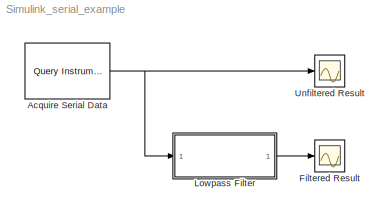
MODEL Simulink_serial_example
KIND model
BLOCK [Reference] Acquire Serial Data  REF=instrumentlib/Query Instrument
  Ports = [0, 1]
  SID = 1
  SourceBlock = instrumentlib/Query Instrument
  SourceProductBaseCode = IC
  SourceProductName = Instrument Control Toolbox
  SourceType = queryinstrument
  afterOutputAction = Repeat query for new data
  asciiFormatting = '%d'
  baudRate = 9600
  boardIndex = 0
  byteOrder = Little endian
  chassisIndex = 0
  enableFrames = off
  frameSize = 1
  gpibVendor = Advantech
  initAction = Send ASCII Commands
  initCommand = 'DATA:SOURCE CH1'
  initFunction = get
  inputBufferSize = 10000
  isWorkspaceObject = off
  logicalAddress = 0
  precision = 16-bit integer
  primaryAddress = 1
  protocol = Serial
  queryCommand = 'curve?'
  removeBytes = on
  responseFormat = Binary
  sampleTime = 1
  secondaryAddress = 0
  serialPort = COM1
  tcpRemoteHost = '127.0.0.1'
  tcpRemotePort = 4500
  timeout = 10
  udpRemoteHost = '127.0.0.1'
  udpRemotePort = 9090
  usbBoardIndex = 0
  usbManufID = 0
  usbModelCode = 0
  usbSerialNumber = 0
  valuesToRead = 1056
  visaSerialPort = 0
  visaTCPBoardIndex = 0
  visaTCPRemoteHost = '127.0.0.1'
  visaVendor = Agilent
BLOCK [Scope] Filtered Result
  Floating = off
  NumInputPorts = 1
  Ports = [1]
  SID = 2
  ScopeSpecificationString = C++SS(StrPVP('Location','[54, 416, 378, 655]'),StrPVP('Open','off'),MxPVP('AxesTitles',54,'struct(''axes1'',''%<SignalLabel>'')'),StrPVP('SaveName','ScopeData1'),StrPVP('DataFormat','StructureWithTime'),StrPVP('BlockParamSampleTime','0'),StrPVP('LimitDataPoints','on'),StrPVP('Decimation','1'),StrPVP('BlockParamSampleInput','off'))
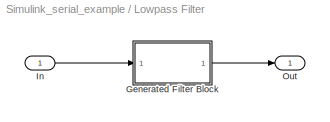
BLOCK [SubSystem] Lowpass Filter
  CopyFcn = fdesignblkfcn(gcbh, {'CopyFcn'});
  DialogController = fdesignblkfcn
  DialogControllerArgs = DataTag1
  InitFcn = fdesignblkfcn(gcbh, {'InitFcn'});
  Ports = [1, 1]
  RequestExecContextInheritance = off
  SID = 3
  UserData = DataTag0
  UserDataPersistent = on
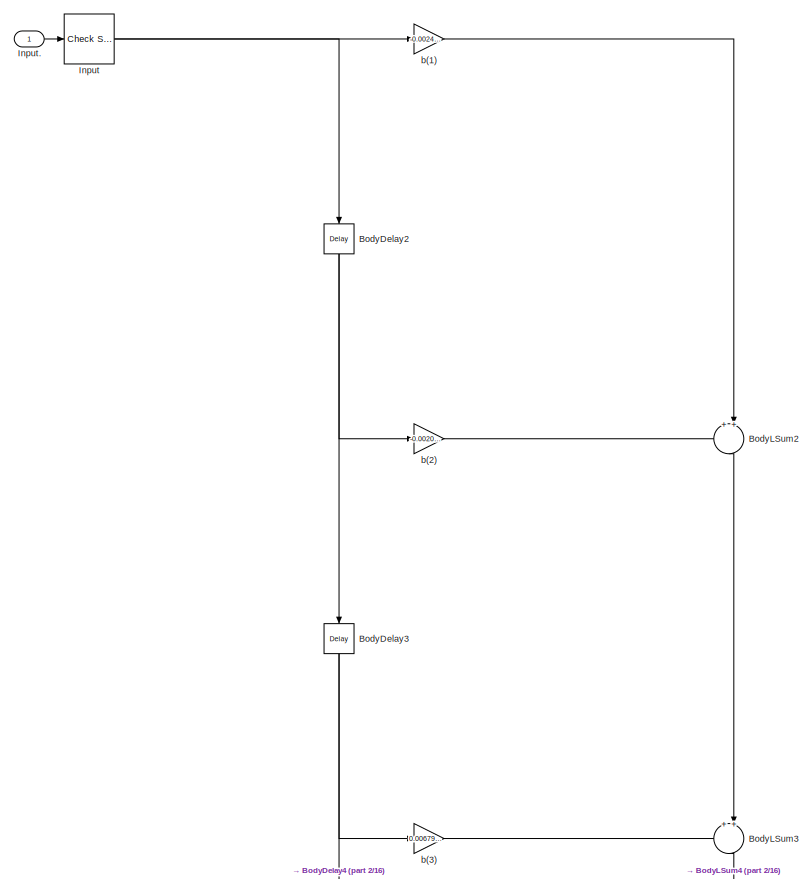
[diagram: Lowpass Filter/Generated Filter Block - part 1/16, full width, top band]
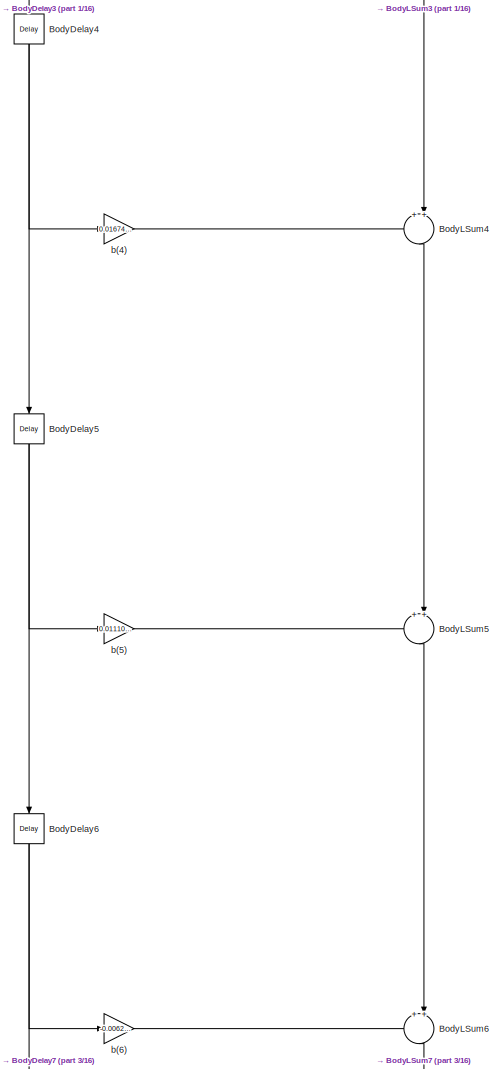
[diagram: Lowpass Filter/Generated Filter Block - part 2/16, top center region]
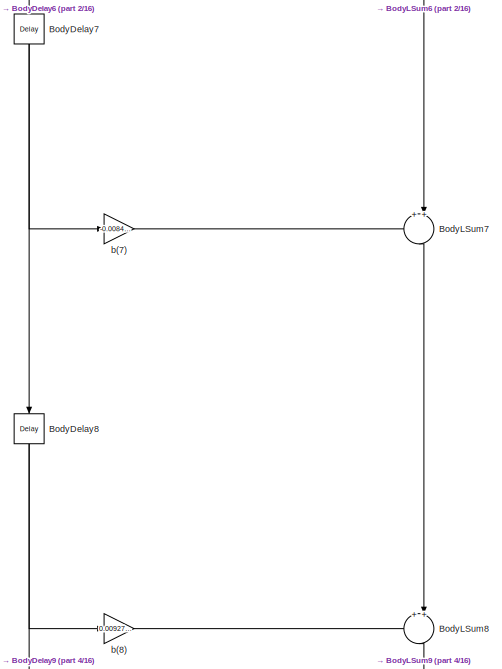
[diagram: Lowpass Filter/Generated Filter Block - part 3/16, top center region]
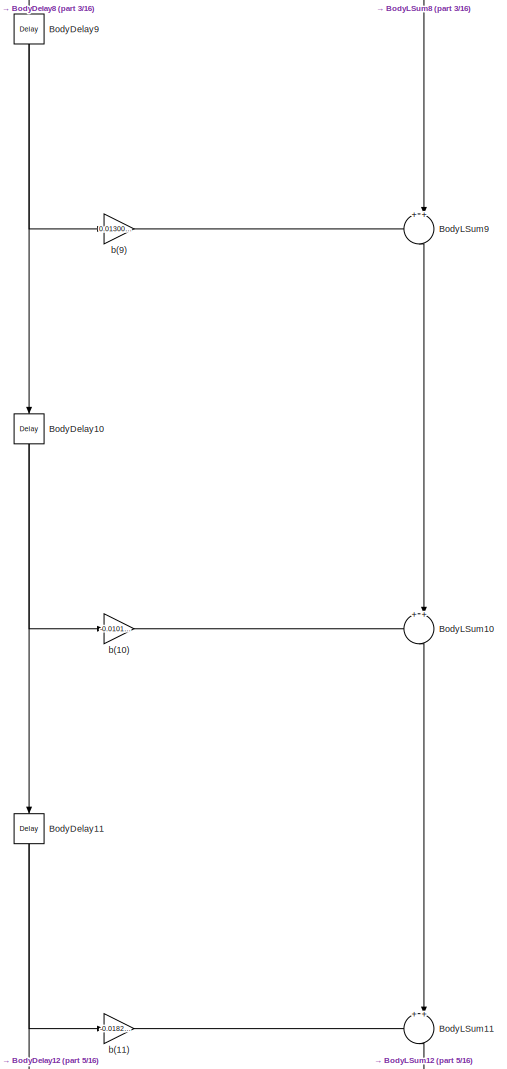
[diagram: Lowpass Filter/Generated Filter Block - part 4/16, top center region]
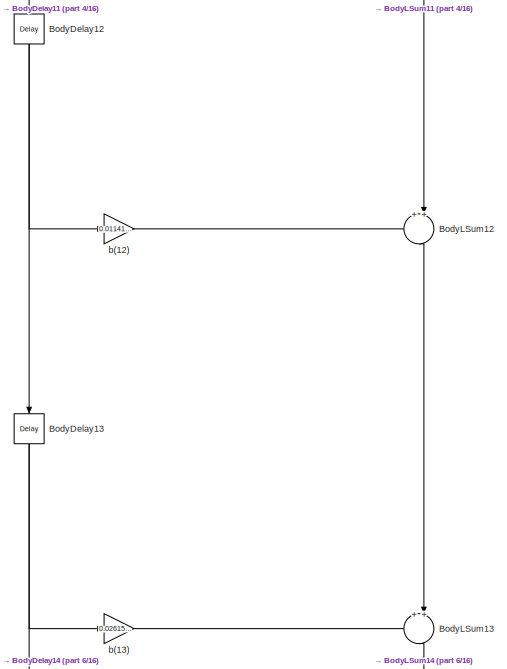
[diagram: Lowpass Filter/Generated Filter Block - part 5/16, top center region]
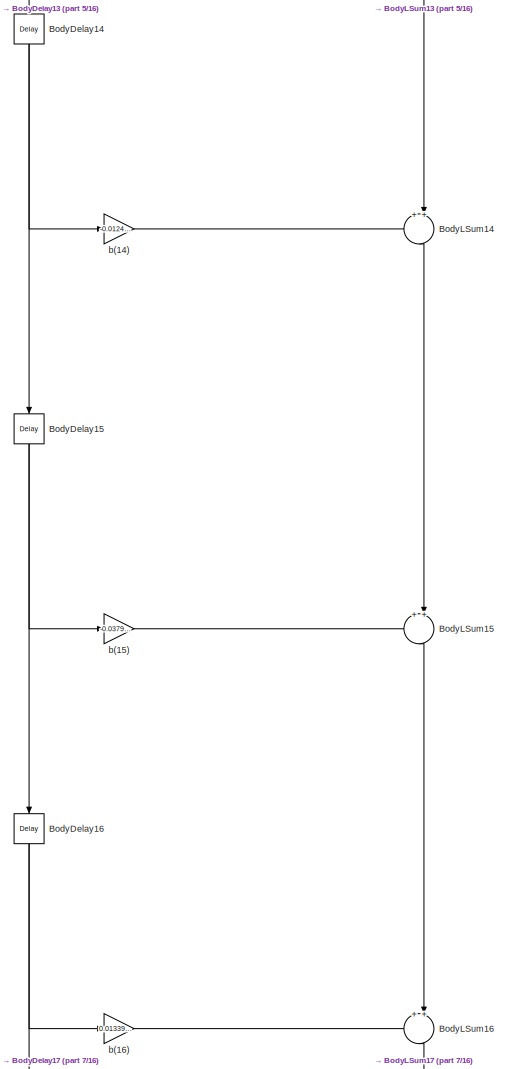
[diagram: Lowpass Filter/Generated Filter Block - part 6/16, top center region]
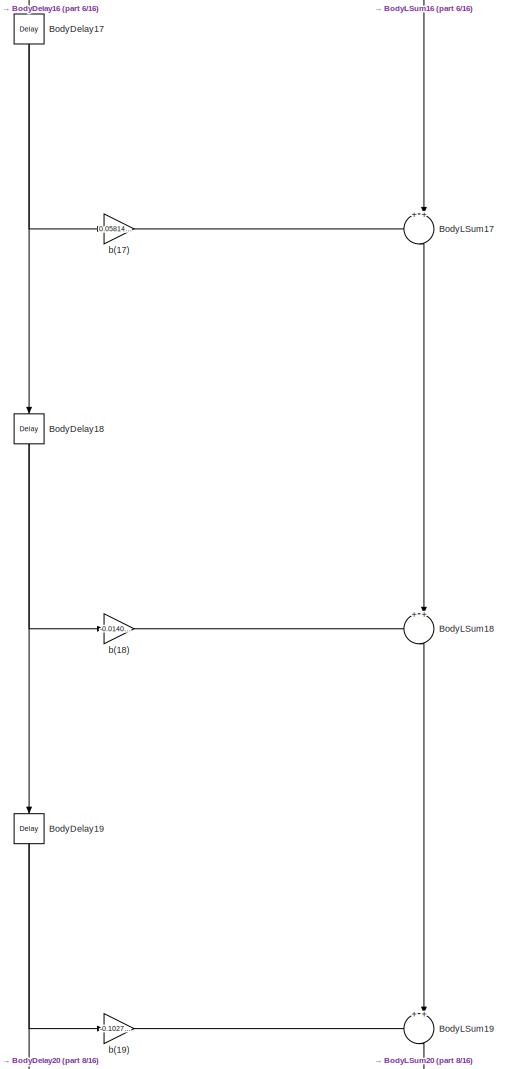
[diagram: Lowpass Filter/Generated Filter Block - part 7/16, central region]
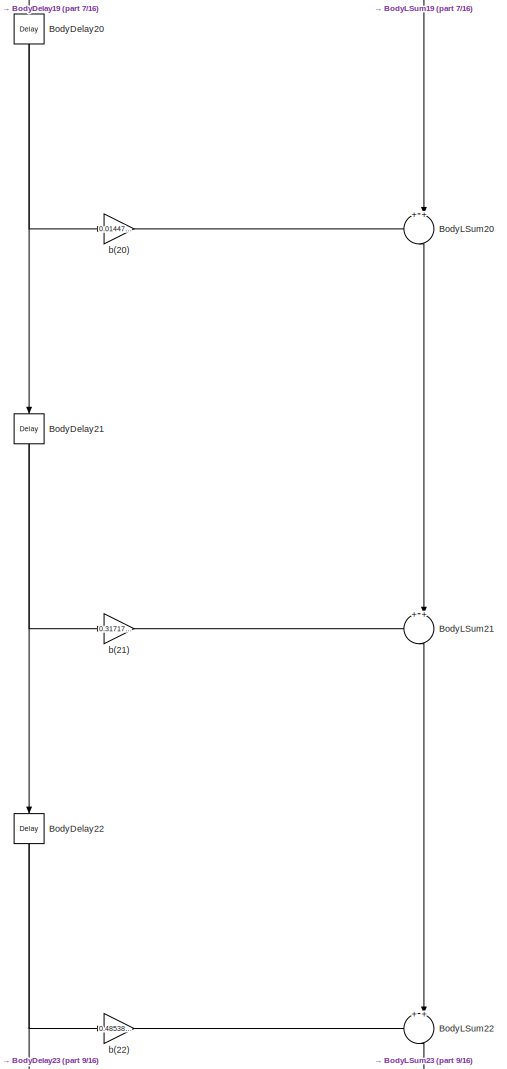
[diagram: Lowpass Filter/Generated Filter Block - part 8/16, central region]
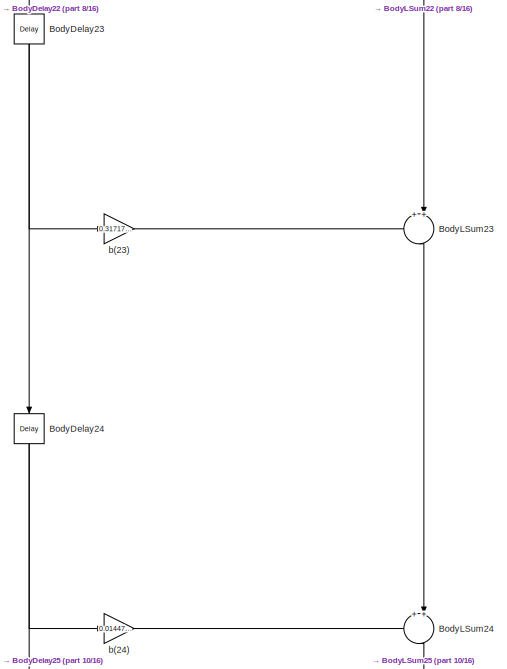
[diagram: Lowpass Filter/Generated Filter Block - part 9/16, central region]
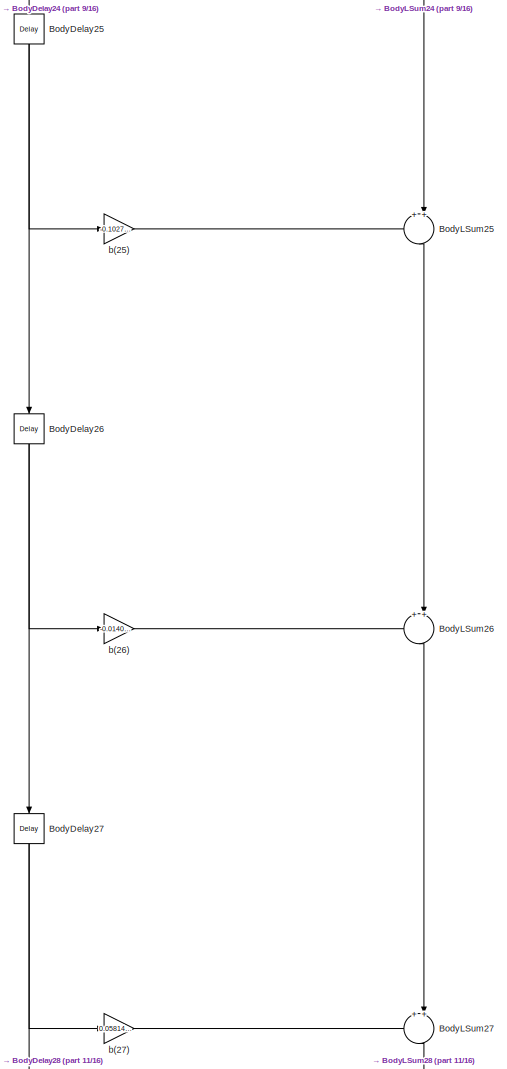
[diagram: Lowpass Filter/Generated Filter Block - part 10/16, central region]
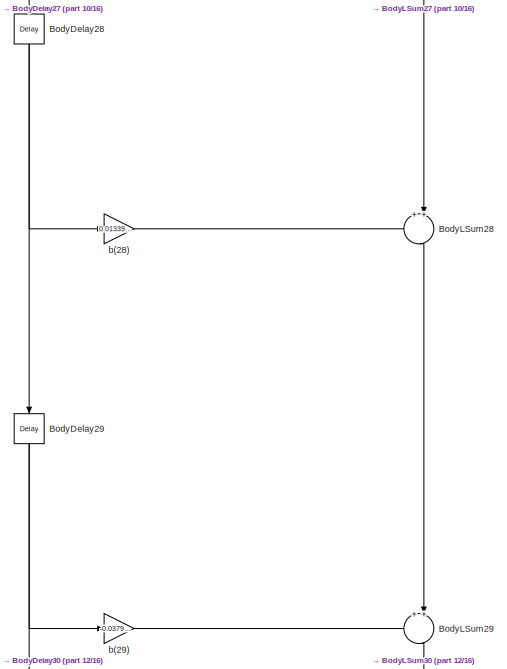
[diagram: Lowpass Filter/Generated Filter Block - part 11/16, central region]
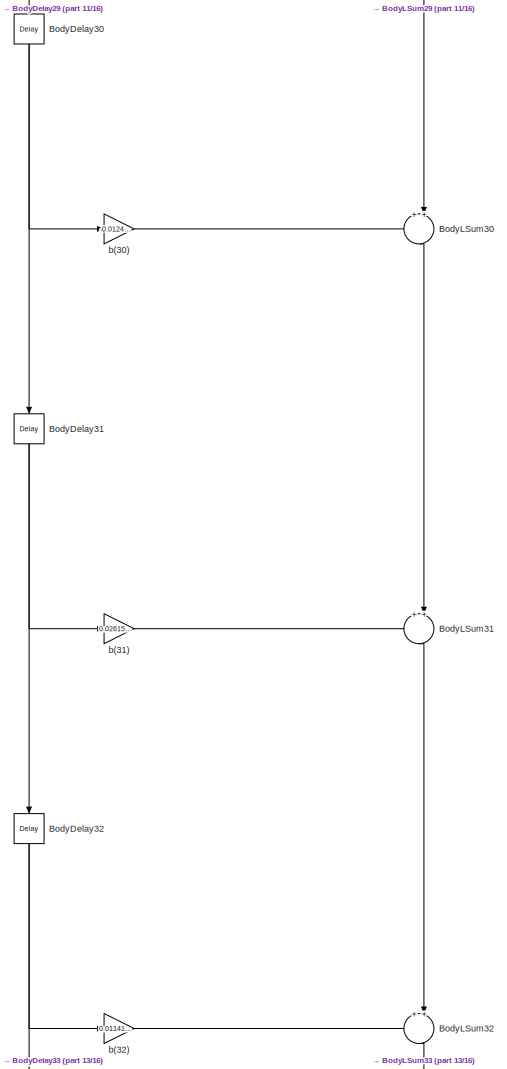
[diagram: Lowpass Filter/Generated Filter Block - part 12/16, bottom center region]
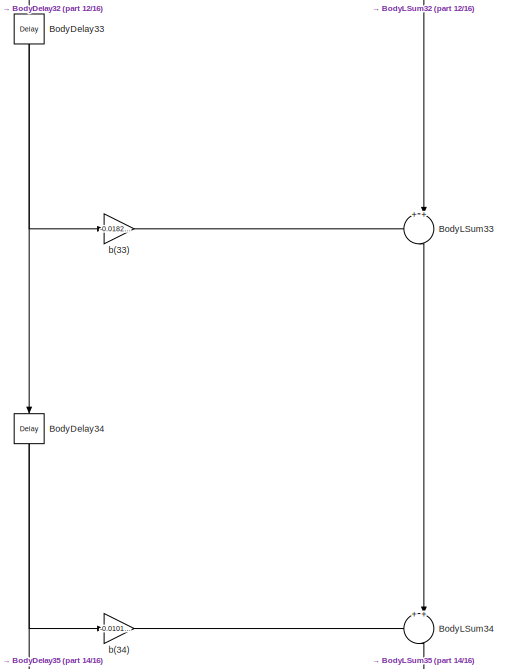
[diagram: Lowpass Filter/Generated Filter Block - part 13/16, bottom center region]
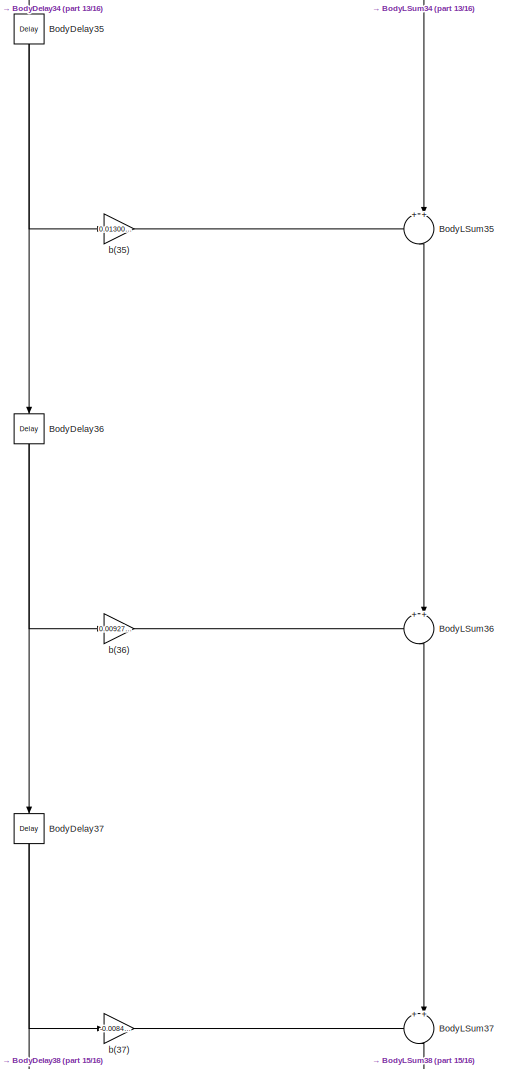
[diagram: Lowpass Filter/Generated Filter Block - part 14/16, bottom center region]
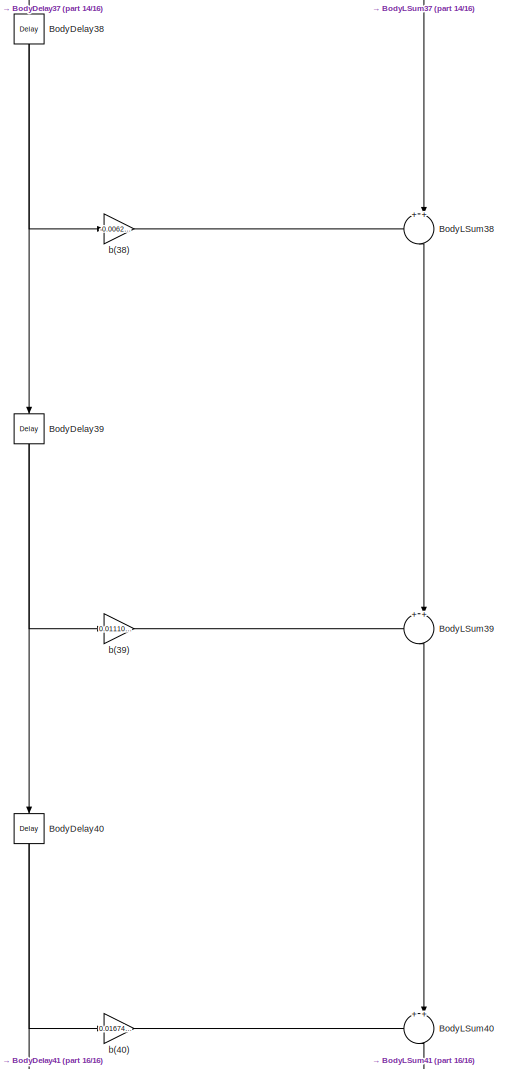
[diagram: Lowpass Filter/Generated Filter Block - part 15/16, bottom center region]
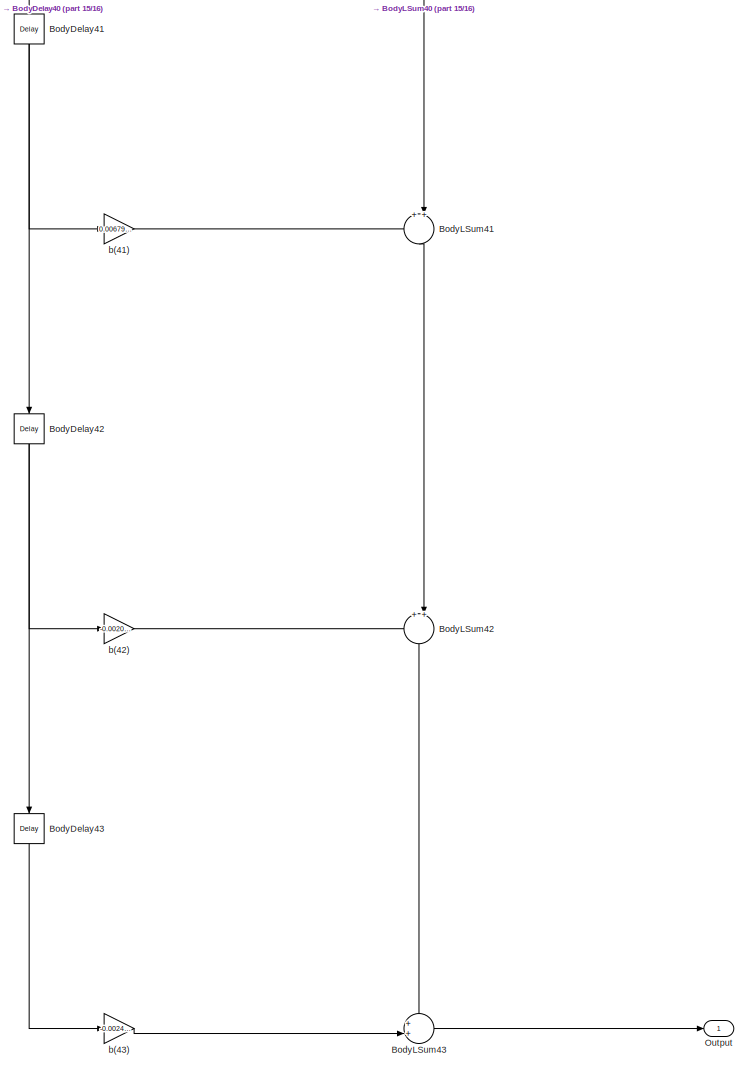
[diagram: Lowpass Filter/Generated Filter Block - part 16/16, bottom center region]
BLOCK [SubSystem] Lowpass Filter/Generated Filter Block
  ErrorFcn = dspFilterRealizedInBasicElemsAlgLoopErrFcnCallback
  Ports = [1, 1]
  RequestExecContextInheritance = off
  SID = 3:2
  Tag = FilterWizardSubSystem
BLOCK [Reference] Lowpass Filter/Generated Filter Block/BodyDelay10  REF=dspsigops/Delay
  Ports = [1, 1]
  SID = 3:4
  SourceBlock = dspsigops/Delay
  SourceProductBaseCode = DS
  SourceProductName = DSP System Toolbox
  SourceType = Delay
  delay = 1
  dif_ic_for_ch = off
  dif_ic_for_dly = off
  dly_unit = Samples
  ic = 0
  ic_detail = off
  reset_popup = None
BLOCK [Reference] Lowpass Filter/Generated Filter Block/BodyDelay11  REF=dspsigops/Delay
  Ports = [1, 1]
  SID = 3:5
  SourceBlock = dspsigops/Delay
  SourceProductBaseCode = DS
  SourceProductName = DSP System Toolbox
  SourceType = Delay
  delay = 1
  dif_ic_for_ch = off
  dif_ic_for_dly = off
  dly_unit = Samples
  ic = 0
  ic_detail = off
  reset_popup = None
BLOCK [Reference] Lowpass Filter/Generated Filter Block/BodyDelay12  REF=dspsigops/Delay
  Ports = [1, 1]
  SID = 3:6
  SourceBlock = dspsigops/Delay
  SourceProductBaseCode = DS
  SourceProductName = DSP System Toolbox
  SourceType = Delay
  delay = 1
  dif_ic_for_ch = off
  dif_ic_for_dly = off
  dly_unit = Samples
  ic = 0
  ic_detail = off
  reset_popup = None
BLOCK [Reference] Lowpass Filter/Generated Filter Block/BodyDelay13  REF=dspsigops/Delay
  Ports = [1, 1]
  SID = 3:7
  SourceBlock = dspsigops/Delay
  SourceProductBaseCode = DS
  SourceProductName = DSP System Toolbox
  SourceType = Delay
  delay = 1
  dif_ic_for_ch = off
  dif_ic_for_dly = off
  dly_unit = Samples
  ic = 0
  ic_detail = off
  reset_popup = None
BLOCK [Reference] Lowpass Filter/Generated Filter Block/BodyDelay14  REF=dspsigops/Delay
  Ports = [1, 1]
  SID = 3:8
  SourceBlock = dspsigops/Delay
  SourceProductBaseCode = DS
  SourceProductName = DSP System Toolbox
  SourceType = Delay
  delay = 1
  dif_ic_for_ch = off
  dif_ic_for_dly = off
  dly_unit = Samples
  ic = 0
  ic_detail = off
  reset_popup = None
BLOCK [Reference] Lowpass Filter/Generated Filter Block/BodyDelay15  REF=dspsigops/Delay
  Ports = [1, 1]
  SID = 3:9
  SourceBlock = dspsigops/Delay
  SourceProductBaseCode = DS
  SourceProductName = DSP System Toolbox
  SourceType = Delay
  delay = 1
  dif_ic_for_ch = off
  dif_ic_for_dly = off
  dly_unit = Samples
  ic = 0
  ic_detail = off
  reset_popup = None
BLOCK [Reference] Lowpass Filter/Generated Filter Block/BodyDelay16  REF=dspsigops/Delay
  Ports = [1, 1]
  SID = 3:10
  SourceBlock = dspsigops/Delay
  SourceProductBaseCode = DS
  SourceProductName = DSP System Toolbox
  SourceType = Delay
  delay = 1
  dif_ic_for_ch = off
  dif_ic_for_dly = off
  dly_unit = Samples
  ic = 0
  ic_detail = off
  reset_popup = None
BLOCK [Reference] Lowpass Filter/Generated Filter Block/BodyDelay17  REF=dspsigops/Delay
  Ports = [1, 1]
  SID = 3:11
  SourceBlock = dspsigops/Delay
  SourceProductBaseCode = DS
  SourceProductName = DSP System Toolbox
  SourceType = Delay
  delay = 1
  dif_ic_for_ch = off
  dif_ic_for_dly = off
  dly_unit = Samples
  ic = 0
  ic_detail = off
  reset_popup = None
BLOCK [Reference] Lowpass Filter/Generated Filter Block/BodyDelay18  REF=dspsigops/Delay
  Ports = [1, 1]
  SID = 3:12
  SourceBlock = dspsigops/Delay
  SourceProductBaseCode = DS
  SourceProductName = DSP System Toolbox
  SourceType = Delay
  delay = 1
  dif_ic_for_ch = off
  dif_ic_for_dly = off
  dly_unit = Samples
  ic = 0
  ic_detail = off
  reset_popup = None
BLOCK [Reference] Lowpass Filter/Generated Filter Block/BodyDelay19  REF=dspsigops/Delay
  Ports = [1, 1]
  SID = 3:13
  SourceBlock = dspsigops/Delay
  SourceProductBaseCode = DS
  SourceProductName = DSP System Toolbox
  SourceType = Delay
  delay = 1
  dif_ic_for_ch = off
  dif_ic_for_dly = off
  dly_unit = Samples
  ic = 0
  ic_detail = off
  reset_popup = None
BLOCK [Reference] Lowpass Filter/Generated Filter Block/BodyDelay2  REF=dspsigops/Delay
  Ports = [1, 1]
  SID = 3:14
  SourceBlock = dspsigops/Delay
  SourceProductBaseCode = DS
  SourceProductName = DSP System Toolbox
  SourceType = Delay
  delay = 1
  dif_ic_for_ch = off
  dif_ic_for_dly = off
  dly_unit = Samples
  ic = 0
  ic_detail = off
  reset_popup = None
BLOCK [Reference] Lowpass Filter/Generated Filter Block/BodyDelay20  REF=dspsigops/Delay
  Ports = [1, 1]
  SID = 3:15
  SourceBlock = dspsigops/Delay
  SourceProductBaseCode = DS
  SourceProductName = DSP System Toolbox
  SourceType = Delay
  delay = 1
  dif_ic_for_ch = off
  dif_ic_for_dly = off
  dly_unit = Samples
  ic = 0
  ic_detail = off
  reset_popup = None
BLOCK [Reference] Lowpass Filter/Generated Filter Block/BodyDelay21  REF=dspsigops/Delay
  Ports = [1, 1]
  SID = 3:16
  SourceBlock = dspsigops/Delay
  SourceProductBaseCode = DS
  SourceProductName = DSP System Toolbox
  SourceType = Delay
  delay = 1
  dif_ic_for_ch = off
  dif_ic_for_dly = off
  dly_unit = Samples
  ic = 0
  ic_detail = off
  reset_popup = None
BLOCK [Reference] Lowpass Filter/Generated Filter Block/BodyDelay22  REF=dspsigops/Delay
  Ports = [1, 1]
  SID = 3:17
  SourceBlock = dspsigops/Delay
  SourceProductBaseCode = DS
  SourceProductName = DSP System Toolbox
  SourceType = Delay
  delay = 1
  dif_ic_for_ch = off
  dif_ic_for_dly = off
  dly_unit = Samples
  ic = 0
  ic_detail = off
  reset_popup = None
BLOCK [Reference] Lowpass Filter/Generated Filter Block/BodyDelay23  REF=dspsigops/Delay
  Ports = [1, 1]
  SID = 3:18
  SourceBlock = dspsigops/Delay
  SourceProductBaseCode = DS
  SourceProductName = DSP System Toolbox
  SourceType = Delay
  delay = 1
  dif_ic_for_ch = off
  dif_ic_for_dly = off
  dly_unit = Samples
  ic = 0
  ic_detail = off
  reset_popup = None
BLOCK [Reference] Lowpass Filter/Generated Filter Block/BodyDelay24  REF=dspsigops/Delay
  Ports = [1, 1]
  SID = 3:19
  SourceBlock = dspsigops/Delay
  SourceProductBaseCode = DS
  SourceProductName = DSP System Toolbox
  SourceType = Delay
  delay = 1
  dif_ic_for_ch = off
  dif_ic_for_dly = off
  dly_unit = Samples
  ic = 0
  ic_detail = off
  reset_popup = None
BLOCK [Reference] Lowpass Filter/Generated Filter Block/BodyDelay25  REF=dspsigops/Delay
  Ports = [1, 1]
  SID = 3:20
  SourceBlock = dspsigops/Delay
  SourceProductBaseCode = DS
  SourceProductName = DSP System Toolbox
  SourceType = Delay
  delay = 1
  dif_ic_for_ch = off
  dif_ic_for_dly = off
  dly_unit = Samples
  ic = 0
  ic_detail = off
  reset_popup = None
BLOCK [Reference] Lowpass Filter/Generated Filter Block/BodyDelay26  REF=dspsigops/Delay
  Ports = [1, 1]
  SID = 3:21
  SourceBlock = dspsigops/Delay
  SourceProductBaseCode = DS
  SourceProductName = DSP System Toolbox
  SourceType = Delay
  delay = 1
  dif_ic_for_ch = off
  dif_ic_for_dly = off
  dly_unit = Samples
  ic = 0
  ic_detail = off
  reset_popup = None
BLOCK [Reference] Lowpass Filter/Generated Filter Block/BodyDelay27  REF=dspsigops/Delay
  Ports = [1, 1]
  SID = 3:22
  SourceBlock = dspsigops/Delay
  SourceProductBaseCode = DS
  SourceProductName = DSP System Toolbox
  SourceType = Delay
  delay = 1
  dif_ic_for_ch = off
  dif_ic_for_dly = off
  dly_unit = Samples
  ic = 0
  ic_detail = off
  reset_popup = None
BLOCK [Reference] Lowpass Filter/Generated Filter Block/BodyDelay28  REF=dspsigops/Delay
  Ports = [1, 1]
  SID = 3:23
  SourceBlock = dspsigops/Delay
  SourceProductBaseCode = DS
  SourceProductName = DSP System Toolbox
  SourceType = Delay
  delay = 1
  dif_ic_for_ch = off
  dif_ic_for_dly = off
  dly_unit = Samples
  ic = 0
  ic_detail = off
  reset_popup = None
BLOCK [Reference] Lowpass Filter/Generated Filter Block/BodyDelay29  REF=dspsigops/Delay
  Ports = [1, 1]
  SID = 3:24
  SourceBlock = dspsigops/Delay
  SourceProductBaseCode = DS
  SourceProductName = DSP System Toolbox
  SourceType = Delay
  delay = 1
  dif_ic_for_ch = off
  dif_ic_for_dly = off
  dly_unit = Samples
  ic = 0
  ic_detail = off
  reset_popup = None
BLOCK [Reference] Lowpass Filter/Generated Filter Block/BodyDelay3  REF=dspsigops/Delay
  Ports = [1, 1]
  SID = 3:25
  SourceBlock = dspsigops/Delay
  SourceProductBaseCode = DS
  SourceProductName = DSP System Toolbox
  SourceType = Delay
  delay = 1
  dif_ic_for_ch = off
  dif_ic_for_dly = off
  dly_unit = Samples
  ic = 0
  ic_detail = off
  reset_popup = None
BLOCK [Reference] Lowpass Filter/Generated Filter Block/BodyDelay30  REF=dspsigops/Delay
  Ports = [1, 1]
  SID = 3:26
  SourceBlock = dspsigops/Delay
  SourceProductBaseCode = DS
  SourceProductName = DSP System Toolbox
  SourceType = Delay
  delay = 1
  dif_ic_for_ch = off
  dif_ic_for_dly = off
  dly_unit = Samples
  ic = 0
  ic_detail = off
  reset_popup = None
BLOCK [Reference] Lowpass Filter/Generated Filter Block/BodyDelay31  REF=dspsigops/Delay
  Ports = [1, 1]
  SID = 3:27
  SourceBlock = dspsigops/Delay
  SourceProductBaseCode = DS
  SourceProductName = DSP System Toolbox
  SourceType = Delay
  delay = 1
  dif_ic_for_ch = off
  dif_ic_for_dly = off
  dly_unit = Samples
  ic = 0
  ic_detail = off
  reset_popup = None
BLOCK [Reference] Lowpass Filter/Generated Filter Block/BodyDelay32  REF=dspsigops/Delay
  Ports = [1, 1]
  SID = 3:28
  SourceBlock = dspsigops/Delay
  SourceProductBaseCode = DS
  SourceProductName = DSP System Toolbox
  SourceType = Delay
  delay = 1
  dif_ic_for_ch = off
  dif_ic_for_dly = off
  dly_unit = Samples
  ic = 0
  ic_detail = off
  reset_popup = None
BLOCK [Reference] Lowpass Filter/Generated Filter Block/BodyDelay33  REF=dspsigops/Delay
  Ports = [1, 1]
  SID = 3:29
  SourceBlock = dspsigops/Delay
  SourceProductBaseCode = DS
  SourceProductName = DSP System Toolbox
  SourceType = Delay
  delay = 1
  dif_ic_for_ch = off
  dif_ic_for_dly = off
  dly_unit = Samples
  ic = 0
  ic_detail = off
  reset_popup = None
BLOCK [Reference] Lowpass Filter/Generated Filter Block/BodyDelay34  REF=dspsigops/Delay
  Ports = [1, 1]
  SID = 3:30
  SourceBlock = dspsigops/Delay
  SourceProductBaseCode = DS
  SourceProductName = DSP System Toolbox
  SourceType = Delay
  delay = 1
  dif_ic_for_ch = off
  dif_ic_for_dly = off
  dly_unit = Samples
  ic = 0
  ic_detail = off
  reset_popup = None
BLOCK [Reference] Lowpass Filter/Generated Filter Block/BodyDelay35  REF=dspsigops/Delay
  Ports = [1, 1]
  SID = 3:31
  SourceBlock = dspsigops/Delay
  SourceProductBaseCode = DS
  SourceProductName = DSP System Toolbox
  SourceType = Delay
  delay = 1
  dif_ic_for_ch = off
  dif_ic_for_dly = off
  dly_unit = Samples
  ic = 0
  ic_detail = off
  reset_popup = None
BLOCK [Reference] Lowpass Filter/Generated Filter Block/BodyDelay36  REF=dspsigops/Delay
  Ports = [1, 1]
  SID = 3:32
  SourceBlock = dspsigops/Delay
  SourceProductBaseCode = DS
  SourceProductName = DSP System Toolbox
  SourceType = Delay
  delay = 1
  dif_ic_for_ch = off
  dif_ic_for_dly = off
  dly_unit = Samples
  ic = 0
  ic_detail = off
  reset_popup = None
BLOCK [Reference] Lowpass Filter/Generated Filter Block/BodyDelay37  REF=dspsigops/Delay
  Ports = [1, 1]
  SID = 3:33
  SourceBlock = dspsigops/Delay
  SourceProductBaseCode = DS
  SourceProductName = DSP System Toolbox
  SourceType = Delay
  delay = 1
  dif_ic_for_ch = off
  dif_ic_for_dly = off
  dly_unit = Samples
  ic = 0
  ic_detail = off
  reset_popup = None
BLOCK [Reference] Lowpass Filter/Generated Filter Block/BodyDelay38  REF=dspsigops/Delay
  Ports = [1, 1]
  SID = 3:34
  SourceBlock = dspsigops/Delay
  SourceProductBaseCode = DS
  SourceProductName = DSP System Toolbox
  SourceType = Delay
  delay = 1
  dif_ic_for_ch = off
  dif_ic_for_dly = off
  dly_unit = Samples
  ic = 0
  ic_detail = off
  reset_popup = None
BLOCK [Reference] Lowpass Filter/Generated Filter Block/BodyDelay39  REF=dspsigops/Delay
  Ports = [1, 1]
  SID = 3:35
  SourceBlock = dspsigops/Delay
  SourceProductBaseCode = DS
  SourceProductName = DSP System Toolbox
  SourceType = Delay
  delay = 1
  dif_ic_for_ch = off
  dif_ic_for_dly = off
  dly_unit = Samples
  ic = 0
  ic_detail = off
  reset_popup = None
BLOCK [Reference] Lowpass Filter/Generated Filter Block/BodyDelay4  REF=dspsigops/Delay
  Ports = [1, 1]
  SID = 3:36
  SourceBlock = dspsigops/Delay
  SourceProductBaseCode = DS
  SourceProductName = DSP System Toolbox
  SourceType = Delay
  delay = 1
  dif_ic_for_ch = off
  dif_ic_for_dly = off
  dly_unit = Samples
  ic = 0
  ic_detail = off
  reset_popup = None
BLOCK [Reference] Lowpass Filter/Generated Filter Block/BodyDelay40  REF=dspsigops/Delay
  Ports = [1, 1]
  SID = 3:37
  SourceBlock = dspsigops/Delay
  SourceProductBaseCode = DS
  SourceProductName = DSP System Toolbox
  SourceType = Delay
  delay = 1
  dif_ic_for_ch = off
  dif_ic_for_dly = off
  dly_unit = Samples
  ic = 0
  ic_detail = off
  reset_popup = None
BLOCK [Reference] Lowpass Filter/Generated Filter Block/BodyDelay41  REF=dspsigops/Delay
  Ports = [1, 1]
  SID = 3:38
  SourceBlock = dspsigops/Delay
  SourceProductBaseCode = DS
  SourceProductName = DSP System Toolbox
  SourceType = Delay
  delay = 1
  dif_ic_for_ch = off
  dif_ic_for_dly = off
  dly_unit = Samples
  ic = 0
  ic_detail = off
  reset_popup = None
BLOCK [Reference] Lowpass Filter/Generated Filter Block/BodyDelay42  REF=dspsigops/Delay
  Ports = [1, 1]
  SID = 3:39
  SourceBlock = dspsigops/Delay
  SourceProductBaseCode = DS
  SourceProductName = DSP System Toolbox
  SourceType = Delay
  delay = 1
  dif_ic_for_ch = off
  dif_ic_for_dly = off
  dly_unit = Samples
  ic = 0
  ic_detail = off
  reset_popup = None
BLOCK [Reference] Lowpass Filter/Generated Filter Block/BodyDelay43  REF=dspsigops/Delay
  Ports = [1, 1]
  SID = 3:40
  SourceBlock = dspsigops/Delay
  SourceProductBaseCode = DS
  SourceProductName = DSP System Toolbox
  SourceType = Delay
  delay = 1
  dif_ic_for_ch = off
  dif_ic_for_dly = off
  dly_unit = Samples
  ic = 0
  ic_detail = off
  reset_popup = None
BLOCK [Reference] Lowpass Filter/Generated Filter Block/BodyDelay5  REF=dspsigops/Delay
  Ports = [1, 1]
  SID = 3:41
  SourceBlock = dspsigops/Delay
  SourceProductBaseCode = DS
  SourceProductName = DSP System Toolbox
  SourceType = Delay
  delay = 1
  dif_ic_for_ch = off
  dif_ic_for_dly = off
  dly_unit = Samples
  ic = 0
  ic_detail = off
  reset_popup = None
BLOCK [Reference] Lowpass Filter/Generated Filter Block/BodyDelay6  REF=dspsigops/Delay
  Ports = [1, 1]
  SID = 3:42
  SourceBlock = dspsigops/Delay
  SourceProductBaseCode = DS
  SourceProductName = DSP System Toolbox
  SourceType = Delay
  delay = 1
  dif_ic_for_ch = off
  dif_ic_for_dly = off
  dly_unit = Samples
  ic = 0
  ic_detail = off
  reset_popup = None
BLOCK [Reference] Lowpass Filter/Generated Filter Block/BodyDelay7  REF=dspsigops/Delay
  Ports = [1, 1]
  SID = 3:43
  SourceBlock = dspsigops/Delay
  SourceProductBaseCode = DS
  SourceProductName = DSP System Toolbox
  SourceType = Delay
  delay = 1
  dif_ic_for_ch = off
  dif_ic_for_dly = off
  dly_unit = Samples
  ic = 0
  ic_detail = off
  reset_popup = None
BLOCK [Reference] Lowpass Filter/Generated Filter Block/BodyDelay8  REF=dspsigops/Delay
  Ports = [1, 1]
  SID = 3:44
  SourceBlock = dspsigops/Delay
  SourceProductBaseCode = DS
  SourceProductName = DSP System Toolbox
  SourceType = Delay
  delay = 1
  dif_ic_for_ch = off
  dif_ic_for_dly = off
  dly_unit = Samples
  ic = 0
  ic_detail = off
  reset_popup = None
BLOCK [Reference] Lowpass Filter/Generated Filter Block/BodyDelay9  REF=dspsigops/Delay
  Ports = [1, 1]
  SID = 3:45
  SourceBlock = dspsigops/Delay
  SourceProductBaseCode = DS
  SourceProductName = DSP System Toolbox
  SourceType = Delay
  delay = 1
  dif_ic_for_ch = off
  dif_ic_for_dly = off
  dly_unit = Samples
  ic = 0
  ic_detail = off
  reset_popup = None
BLOCK [Sum] Lowpass Filter/Generated Filter Block/BodyLSum10
  IconShape = round
  Inputs = ++|
  OutDataTypeStr = Inherit: Inherit via internal rule
  Ports = [2, 1]
  RndMeth = Nearest
  SID = 3:46
BLOCK [Sum] Lowpass Filter/Generated Filter Block/BodyLSum11
  IconShape = round
  Inputs = ++|
  OutDataTypeStr = Inherit: Inherit via internal rule
  Ports = [2, 1]
  RndMeth = Nearest
  SID = 3:47
BLOCK [Sum] Lowpass Filter/Generated Filter Block/BodyLSum12
  IconShape = round
  Inputs = ++|
  OutDataTypeStr = Inherit: Inherit via internal rule
  Ports = [2, 1]
  RndMeth = Nearest
  SID = 3:48
BLOCK [Sum] Lowpass Filter/Generated Filter Block/BodyLSum13
  IconShape = round
  Inputs = ++|
  OutDataTypeStr = Inherit: Inherit via internal rule
  Ports = [2, 1]
  RndMeth = Nearest
  SID = 3:49
BLOCK [Sum] Lowpass Filter/Generated Filter Block/BodyLSum14
  IconShape = round
  Inputs = ++|
  OutDataTypeStr = Inherit: Inherit via internal rule
  Ports = [2, 1]
  RndMeth = Nearest
  SID = 3:50
BLOCK [Sum] Lowpass Filter/Generated Filter Block/BodyLSum15
  IconShape = round
  Inputs = ++|
  OutDataTypeStr = Inherit: Inherit via internal rule
  Ports = [2, 1]
  RndMeth = Nearest
  SID = 3:51
BLOCK [Sum] Lowpass Filter/Generated Filter Block/BodyLSum16
  IconShape = round
  Inputs = ++|
  OutDataTypeStr = Inherit: Inherit via internal rule
  Ports = [2, 1]
  RndMeth = Nearest
  SID = 3:52
BLOCK [Sum] Lowpass Filter/Generated Filter Block/BodyLSum17
  IconShape = round
  Inputs = ++|
  OutDataTypeStr = Inherit: Inherit via internal rule
  Ports = [2, 1]
  RndMeth = Nearest
  SID = 3:53
BLOCK [Sum] Lowpass Filter/Generated Filter Block/BodyLSum18
  IconShape = round
  Inputs = ++|
  OutDataTypeStr = Inherit: Inherit via internal rule
  Ports = [2, 1]
  RndMeth = Nearest
  SID = 3:54
BLOCK [Sum] Lowpass Filter/Generated Filter Block/BodyLSum19
  IconShape = round
  Inputs = ++|
  OutDataTypeStr = Inherit: Inherit via internal rule
  Ports = [2, 1]
  RndMeth = Nearest
  SID = 3:55
BLOCK [Sum] Lowpass Filter/Generated Filter Block/BodyLSum2
  IconShape = round
  Inputs = ++|
  OutDataTypeStr = Inherit: Inherit via internal rule
  Ports = [2, 1]
  RndMeth = Nearest
  SID = 3:56
BLOCK [Sum] Lowpass Filter/Generated Filter Block/BodyLSum20
  IconShape = round
  Inputs = ++|
  OutDataTypeStr = Inherit: Inherit via internal rule
  Ports = [2, 1]
  RndMeth = Nearest
  SID = 3:57
BLOCK [Sum] Lowpass Filter/Generated Filter Block/BodyLSum21
  IconShape = round
  Inputs = ++|
  OutDataTypeStr = Inherit: Inherit via internal rule
  Ports = [2, 1]
  RndMeth = Nearest
  SID = 3:58
BLOCK [Sum] Lowpass Filter/Generated Filter Block/BodyLSum22
  IconShape = round
  Inputs = ++|
  OutDataTypeStr = Inherit: Inherit via internal rule
  Ports = [2, 1]
  RndMeth = Nearest
  SID = 3:59
BLOCK [Sum] Lowpass Filter/Generated Filter Block/BodyLSum23
  IconShape = round
  Inputs = ++|
  OutDataTypeStr = Inherit: Inherit via internal rule
  Ports = [2, 1]
  RndMeth = Nearest
  SID = 3:60
BLOCK [Sum] Lowpass Filter/Generated Filter Block/BodyLSum24
  IconShape = round
  Inputs = ++|
  OutDataTypeStr = Inherit: Inherit via internal rule
  Ports = [2, 1]
  RndMeth = Nearest
  SID = 3:61
BLOCK [Sum] Lowpass Filter/Generated Filter Block/BodyLSum25
  IconShape = round
  Inputs = ++|
  OutDataTypeStr = Inherit: Inherit via internal rule
  Ports = [2, 1]
  RndMeth = Nearest
  SID = 3:62
BLOCK [Sum] Lowpass Filter/Generated Filter Block/BodyLSum26
  IconShape = round
  Inputs = ++|
  OutDataTypeStr = Inherit: Inherit via internal rule
  Ports = [2, 1]
  RndMeth = Nearest
  SID = 3:63
BLOCK [Sum] Lowpass Filter/Generated Filter Block/BodyLSum27
  IconShape = round
  Inputs = ++|
  OutDataTypeStr = Inherit: Inherit via internal rule
  Ports = [2, 1]
  RndMeth = Nearest
  SID = 3:64
BLOCK [Sum] Lowpass Filter/Generated Filter Block/BodyLSum28
  IconShape = round
  Inputs = ++|
  OutDataTypeStr = Inherit: Inherit via internal rule
  Ports = [2, 1]
  RndMeth = Nearest
  SID = 3:65
BLOCK [Sum] Lowpass Filter/Generated Filter Block/BodyLSum29
  IconShape = round
  Inputs = ++|
  OutDataTypeStr = Inherit: Inherit via internal rule
  Ports = [2, 1]
  RndMeth = Nearest
  SID = 3:66
BLOCK [Sum] Lowpass Filter/Generated Filter Block/BodyLSum3
  IconShape = round
  Inputs = ++|
  OutDataTypeStr = Inherit: Inherit via internal rule
  Ports = [2, 1]
  RndMeth = Nearest
  SID = 3:67
BLOCK [Sum] Lowpass Filter/Generated Filter Block/BodyLSum30
  IconShape = round
  Inputs = ++|
  OutDataTypeStr = Inherit: Inherit via internal rule
  Ports = [2, 1]
  RndMeth = Nearest
  SID = 3:68
BLOCK [Sum] Lowpass Filter/Generated Filter Block/BodyLSum31
  IconShape = round
  Inputs = ++|
  OutDataTypeStr = Inherit: Inherit via internal rule
  Ports = [2, 1]
  RndMeth = Nearest
  SID = 3:69
BLOCK [Sum] Lowpass Filter/Generated Filter Block/BodyLSum32
  IconShape = round
  Inputs = ++|
  OutDataTypeStr = Inherit: Inherit via internal rule
  Ports = [2, 1]
  RndMeth = Nearest
  SID = 3:70
BLOCK [Sum] Lowpass Filter/Generated Filter Block/BodyLSum33
  IconShape = round
  Inputs = ++|
  OutDataTypeStr = Inherit: Inherit via internal rule
  Ports = [2, 1]
  RndMeth = Nearest
  SID = 3:71
BLOCK [Sum] Lowpass Filter/Generated Filter Block/BodyLSum34
  IconShape = round
  Inputs = ++|
  OutDataTypeStr = Inherit: Inherit via internal rule
  Ports = [2, 1]
  RndMeth = Nearest
  SID = 3:72
BLOCK [Sum] Lowpass Filter/Generated Filter Block/BodyLSum35
  IconShape = round
  Inputs = ++|
  OutDataTypeStr = Inherit: Inherit via internal rule
  Ports = [2, 1]
  RndMeth = Nearest
  SID = 3:73
BLOCK [Sum] Lowpass Filter/Generated Filter Block/BodyLSum36
  IconShape = round
  Inputs = ++|
  OutDataTypeStr = Inherit: Inherit via internal rule
  Ports = [2, 1]
  RndMeth = Nearest
  SID = 3:74
BLOCK [Sum] Lowpass Filter/Generated Filter Block/BodyLSum37
  IconShape = round
  Inputs = ++|
  OutDataTypeStr = Inherit: Inherit via internal rule
  Ports = [2, 1]
  RndMeth = Nearest
  SID = 3:75
BLOCK [Sum] Lowpass Filter/Generated Filter Block/BodyLSum38
  IconShape = round
  Inputs = ++|
  OutDataTypeStr = Inherit: Inherit via internal rule
  Ports = [2, 1]
  RndMeth = Nearest
  SID = 3:76
BLOCK [Sum] Lowpass Filter/Generated Filter Block/BodyLSum39
  IconShape = round
  Inputs = ++|
  OutDataTypeStr = Inherit: Inherit via internal rule
  Ports = [2, 1]
  RndMeth = Nearest
  SID = 3:77
BLOCK [Sum] Lowpass Filter/Generated Filter Block/BodyLSum4
  IconShape = round
  Inputs = ++|
  OutDataTypeStr = Inherit: Inherit via internal rule
  Ports = [2, 1]
  RndMeth = Nearest
  SID = 3:78
BLOCK [Sum] Lowpass Filter/Generated Filter Block/BodyLSum40
  IconShape = round
  Inputs = ++|
  OutDataTypeStr = Inherit: Inherit via internal rule
  Ports = [2, 1]
  RndMeth = Nearest
  SID = 3:79
BLOCK [Sum] Lowpass Filter/Generated Filter Block/BodyLSum41
  IconShape = round
  Inputs = ++|
  OutDataTypeStr = Inherit: Inherit via internal rule
  Ports = [2, 1]
  RndMeth = Nearest
  SID = 3:80
BLOCK [Sum] Lowpass Filter/Generated Filter Block/BodyLSum42
  IconShape = round
  Inputs = ++|
  OutDataTypeStr = Inherit: Inherit via internal rule
  Ports = [2, 1]
  RndMeth = Nearest
  SID = 3:81
BLOCK [Sum] Lowpass Filter/Generated Filter Block/BodyLSum43
  IconShape = round
  Inputs = ++|
  OutDataTypeStr = Inherit: Inherit via internal rule
  Ports = [2, 1]
  RndMeth = Nearest
  SID = 3:82
BLOCK [Sum] Lowpass Filter/Generated Filter Block/BodyLSum5
  IconShape = round
  Inputs = ++|
  OutDataTypeStr = Inherit: Inherit via internal rule
  Ports = [2, 1]
  RndMeth = Nearest
  SID = 3:83
BLOCK [Sum] Lowpass Filter/Generated Filter Block/BodyLSum6
  IconShape = round
  Inputs = ++|
  OutDataTypeStr = Inherit: Inherit via internal rule
  Ports = [2, 1]
  RndMeth = Nearest
  SID = 3:84
BLOCK [Sum] Lowpass Filter/Generated Filter Block/BodyLSum7
  IconShape = round
  Inputs = ++|
  OutDataTypeStr = Inherit: Inherit via internal rule
  Ports = [2, 1]
  RndMeth = Nearest
  SID = 3:85
BLOCK [Sum] Lowpass Filter/Generated Filter Block/BodyLSum8
  IconShape = round
  Inputs = ++|
  OutDataTypeStr = Inherit: Inherit via internal rule
  Ports = [2, 1]
  RndMeth = Nearest
  SID = 3:86
BLOCK [Sum] Lowpass Filter/Generated Filter Block/BodyLSum9
  IconShape = round
  Inputs = ++|
  OutDataTypeStr = Inherit: Inherit via internal rule
  Ports = [2, 1]
  RndMeth = Nearest
  SID = 3:87
BLOCK [Reference] Lowpass Filter/Generated Filter Block/Input  REF=dspsigattribs/Check Signal\nAttributes
  Complexity = Ignore
  DatatypeCheckMethod = Is not...
  DatatypeGeneral = Floating-point
  Dimensions = 1-D
  DimsCheckMethod = Ignore
  DtypeFixedSpecific = Any fixed-point
  DtypeFloatSpecific = Any floating-point
  DtypeIntSpecific = Any integer
  Frame = Ignore
  FunctionWithSeparateData = off
  Ports = [1, 1]
  RTWMemSecDataConstants = Inherit from model
  RTWMemSecDataInternal = Inherit from model
  RTWMemSecDataParameters = Inherit from model
  RTWMemSecFuncExecute = Inherit from model
  RTWMemSecFuncInitTerm = Inherit from model
  SID = 3:88
  SampleMode = Ignore
  ShowPortLabels = on
  SigAttribCheckMethod = Matches attributes exactly
  SourceBlock = dspsigattribs/Check Signal\nAttributes
  SourceProductBaseCode = DS
  SourceProductName = DSP System Toolbox
  SourceType = Check Signal Attributes
  SystemSampleTime = -1
BLOCK [Inport] Lowpass Filter/Generated Filter Block/Input.
  IconDisplay = Port number
  SID = 3:3
BLOCK [Outport] Lowpass Filter/Generated Filter Block/Output
  IconDisplay = Port number
  SID = 3:132
BLOCK [Gain] Lowpass Filter/Generated Filter Block/b(1)
  Gain = -0.0024184515821339815
  OutDataTypeStr = Inherit: Inherit via internal rule
  ParamDataTypeStr = Inherit: Inherit via internal rule
  SID = 3:89
BLOCK [Gain] Lowpass Filter/Generated Filter Block/b(10)
  Gain = -0.010109941080713171
  OutDataTypeStr = Inherit: Inherit via internal rule
  ParamDataTypeStr = Inherit: Inherit via internal rule
  SID = 3:90
BLOCK [Gain] Lowpass Filter/Generated Filter Block/b(11)
  Gain = -0.018276710028363563
  OutDataTypeStr = Inherit: Inherit via internal rule
  ParamDataTypeStr = Inherit: Inherit via internal rule
  SID = 3:91
BLOCK [Gain] Lowpass Filter/Generated Filter Block/b(12)
  Gain = 0.011417030384770118
  OutDataTypeStr = Inherit: Inherit via internal rule
  ParamDataTypeStr = Inherit: Inherit via internal rule
  SID = 3:92
BLOCK [Gain] Lowpass Filter/Generated Filter Block/b(13)
  Gain = 0.026158313267711154
  OutDataTypeStr = Inherit: Inherit via internal rule
  ParamDataTypeStr = Inherit: Inherit via internal rule
  SID = 3:93
BLOCK [Gain] Lowpass Filter/Generated Filter Block/b(14)
  Gain = -0.01249452054902888
  OutDataTypeStr = Inherit: Inherit via internal rule
  ParamDataTypeStr = Inherit: Inherit via internal rule
  SID = 3:94
BLOCK [Gain] Lowpass Filter/Generated Filter Block/b(15)
  Gain = -0.037985890726300542
  OutDataTypeStr = Inherit: Inherit via internal rule
  ParamDataTypeStr = Inherit: Inherit via internal rule
  SID = 3:95
BLOCK [Gain] Lowpass Filter/Generated Filter Block/b(16)
  Gain = 0.013398022406508189
  OutDataTypeStr = Inherit: Inherit via internal rule
  ParamDataTypeStr = Inherit: Inherit via internal rule
  SID = 3:96
BLOCK [Gain] Lowpass Filter/Generated Filter Block/b(17)
  Gain = 0.058143561333869977
  OutDataTypeStr = Inherit: Inherit via internal rule
  ParamDataTypeStr = Inherit: Inherit via internal rule
  SID = 3:97
BLOCK [Gain] Lowpass Filter/Generated Filter Block/b(18)
  Gain = -0.014068918704128731
  OutDataTypeStr = Inherit: Inherit via internal rule
  ParamDataTypeStr = Inherit: Inherit via internal rule
  SID = 3:98
BLOCK [Gain] Lowpass Filter/Generated Filter Block/b(19)
  Gain = -0.10272737868066549
  OutDataTypeStr = Inherit: Inherit via internal rule
  ParamDataTypeStr = Inherit: Inherit via internal rule
  SID = 3:99
BLOCK [Gain] Lowpass Filter/Generated Filter Block/b(2)
  Gain = -0.0020659659418839509
  OutDataTypeStr = Inherit: Inherit via internal rule
  ParamDataTypeStr = Inherit: Inherit via internal rule
  SID = 3:100
BLOCK [Gain] Lowpass Filter/Generated Filter Block/b(20)
  Gain = 0.014476257883398099
  OutDataTypeStr = Inherit: Inherit via internal rule
  ParamDataTypeStr = Inherit: Inherit via internal rule
  SID = 3:101
BLOCK [Gain] Lowpass Filter/Generated Filter Block/b(21)
  Gain = 0.31717292271198066
  OutDataTypeStr = Inherit: Inherit via internal rule
  ParamDataTypeStr = Inherit: Inherit via internal rule
  SID = 3:102
BLOCK [Gain] Lowpass Filter/Generated Filter Block/b(22)
  Gain = 0.48538538772192297
  OutDataTypeStr = Inherit: Inherit via internal rule
  ParamDataTypeStr = Inherit: Inherit via internal rule
  SID = 3:103
BLOCK [Gain] Lowpass Filter/Generated Filter Block/b(23)
  Gain = 0.31717292271198066
  OutDataTypeStr = Inherit: Inherit via internal rule
  ParamDataTypeStr = Inherit: Inherit via internal rule
  SID = 3:104
BLOCK [Gain] Lowpass Filter/Generated Filter Block/b(24)
  Gain = 0.014476257883398099
  OutDataTypeStr = Inherit: Inherit via internal rule
  ParamDataTypeStr = Inherit: Inherit via internal rule
  SID = 3:105
BLOCK [Gain] Lowpass Filter/Generated Filter Block/b(25)
  Gain = -0.10272737868066549
  OutDataTypeStr = Inherit: Inherit via internal rule
  ParamDataTypeStr = Inherit: Inherit via internal rule
  SID = 3:106
BLOCK [Gain] Lowpass Filter/Generated Filter Block/b(26)
  Gain = -0.014068918704128731
  OutDataTypeStr = Inherit: Inherit via internal rule
  ParamDataTypeStr = Inherit: Inherit via internal rule
  SID = 3:107
BLOCK [Gain] Lowpass Filter/Generated Filter Block/b(27)
  Gain = 0.058143561333869977
  OutDataTypeStr = Inherit: Inherit via internal rule
  ParamDataTypeStr = Inherit: Inherit via internal rule
  SID = 3:108
BLOCK [Gain] Lowpass Filter/Generated Filter Block/b(28)
  Gain = 0.013398022406508189
  OutDataTypeStr = Inherit: Inherit via internal rule
  ParamDataTypeStr = Inherit: Inherit via internal rule
  SID = 3:109
BLOCK [Gain] Lowpass Filter/Generated Filter Block/b(29)
  Gain = -0.037985890726300542
  OutDataTypeStr = Inherit: Inherit via internal rule
  ParamDataTypeStr = Inherit: Inherit via internal rule
  SID = 3:110
BLOCK [Gain] Lowpass Filter/Generated Filter Block/b(3)
  Gain = 0.0067960727631209738
  OutDataTypeStr = Inherit: Inherit via internal rule
  ParamDataTypeStr = Inherit: Inherit via internal rule
  SID = 3:111
BLOCK [Gain] Lowpass Filter/Generated Filter Block/b(30)
  Gain = -0.01249452054902888
  OutDataTypeStr = Inherit: Inherit via internal rule
  ParamDataTypeStr = Inherit: Inherit via internal rule
  SID = 3:112
BLOCK [Gain] Lowpass Filter/Generated Filter Block/b(31)
  Gain = 0.026158313267711154
  OutDataTypeStr = Inherit: Inherit via internal rule
  ParamDataTypeStr = Inherit: Inherit via internal rule
  SID = 3:113
BLOCK [Gain] Lowpass Filter/Generated Filter Block/b(32)
  Gain = 0.011417030384770118
  OutDataTypeStr = Inherit: Inherit via internal rule
  ParamDataTypeStr = Inherit: Inherit via internal rule
  SID = 3:114
BLOCK [Gain] Lowpass Filter/Generated Filter Block/b(33)
  Gain = -0.018276710028363563
  OutDataTypeStr = Inherit: Inherit via internal rule
  ParamDataTypeStr = Inherit: Inherit via internal rule
  SID = 3:115
BLOCK [Gain] Lowpass Filter/Generated Filter Block/b(34)
  Gain = -0.010109941080713171
  OutDataTypeStr = Inherit: Inherit via internal rule
  ParamDataTypeStr = Inherit: Inherit via internal rule
  SID = 3:116
BLOCK [Gain] Lowpass Filter/Generated Filter Block/b(35)
  Gain = 0.013006159969671948
  OutDataTypeStr = Inherit: Inherit via internal rule
  ParamDataTypeStr = Inherit: Inherit via internal rule
  SID = 3:117
BLOCK [Gain] Lowpass Filter/Generated Filter Block/b(36)
  Gain = 0.009274892431970062
  OutDataTypeStr = Inherit: Inherit via internal rule
  ParamDataTypeStr = Inherit: Inherit via internal rule
  SID = 3:118
BLOCK [Gain] Lowpass Filter/Generated Filter Block/b(37)
  Gain = -0.0084078268149707022
  OutDataTypeStr = Inherit: Inherit via internal rule
  ParamDataTypeStr = Inherit: Inherit via internal rule
  SID = 3:119
BLOCK [Gain] Lowpass Filter/Generated Filter Block/b(38)
  Gain = -0.0062562536117661332
  OutDataTypeStr = Inherit: Inherit via internal rule
  ParamDataTypeStr = Inherit: Inherit via internal rule
  SID = 3:120
BLOCK [Gain] Lowpass Filter/Generated Filter Block/b(39)
  Gain = 0.011103324338448677
  OutDataTypeStr = Inherit: Inherit via internal rule
  ParamDataTypeStr = Inherit: Inherit via internal rule
  SID = 3:121
BLOCK [Gain] Lowpass Filter/Generated Filter Block/b(4)
  Gain = 0.016745537375577622
  OutDataTypeStr = Inherit: Inherit via internal rule
  ParamDataTypeStr = Inherit: Inherit via internal rule
  SID = 3:122
BLOCK [Gain] Lowpass Filter/Generated Filter Block/b(40)
  Gain = 0.016745537375577622
  OutDataTypeStr = Inherit: Inherit via internal rule
  ParamDataTypeStr = Inherit: Inherit via internal rule
  SID = 3:123
BLOCK [Gain] Lowpass Filter/Generated Filter Block/b(41)
  Gain = 0.0067960727631209738
  OutDataTypeStr = Inherit: Inherit via internal rule
  ParamDataTypeStr = Inherit: Inherit via internal rule
  SID = 3:124
BLOCK [Gain] Lowpass Filter/Generated Filter Block/b(42)
  Gain = -0.0020659659418839509
  OutDataTypeStr = Inherit: Inherit via internal rule
  ParamDataTypeStr = Inherit: Inherit via internal rule
  SID = 3:125
BLOCK [Gain] Lowpass Filter/Generated Filter Block/b(43)
  Gain = -0.0024184515821339815
  OutDataTypeStr = Inherit: Inherit via internal rule
  ParamDataTypeStr = Inherit: Inherit via internal rule
  SID = 3:126
BLOCK [Gain] Lowpass Filter/Generated Filter Block/b(5)
  Gain = 0.011103324338448677
  OutDataTypeStr = Inherit: Inherit via internal rule
  ParamDataTypeStr = Inherit: Inherit via internal rule
  SID = 3:127
BLOCK [Gain] Lowpass Filter/Generated Filter Block/b(6)
  Gain = -0.0062562536117661332
  OutDataTypeStr = Inherit: Inherit via internal rule
  ParamDataTypeStr = Inherit: Inherit via internal rule
  SID = 3:128
BLOCK [Gain] Lowpass Filter/Generated Filter Block/b(7)
  Gain = -0.0084078268149707022
  OutDataTypeStr = Inherit: Inherit via internal rule
  ParamDataTypeStr = Inherit: Inherit via internal rule
  SID = 3:129
BLOCK [Gain] Lowpass Filter/Generated Filter Block/b(8)
  Gain = 0.009274892431970062
  OutDataTypeStr = Inherit: Inherit via internal rule
  ParamDataTypeStr = Inherit: Inherit via internal rule
  SID = 3:130
BLOCK [Gain] Lowpass Filter/Generated Filter Block/b(9)
  Gain = 0.013006159969671948
  OutDataTypeStr = Inherit: Inherit via internal rule
  ParamDataTypeStr = Inherit: Inherit via internal rule
  SID = 3:131
BLOCK [Inport] Lowpass Filter/In
  IconDisplay = Port number
  SID = 3:1
BLOCK [Outport] Lowpass Filter/Out
  IconDisplay = Port number
  SID = 3:133
BLOCK [Scope] Unfiltered Result
  Floating = off
  NumInputPorts = 1
  Ports = [1]
  SID = 4
  ScopeSpecificationString = C++SS(StrPVP('Location','[64, 366, 388, 605]'),StrPVP('Open','off'),MxPVP('AxesTitles',54,'struct(''axes1'',''%<SignalLabel>'')'),StrPVP('DataFormat','StructureWithTime'),StrPVP('BlockParamSampleTime','0'),StrPVP('LimitDataPoints','on'),StrPVP('Decimation','1'),StrPVP('BlockParamSampleInput','off'))
NET Acquire Serial Data:1 -> Lowpass Filter:1, Unfiltered Result:1
NET Lowpass Filter/Generated Filter Block/BodyDelay10:1 -> Lowpass Filter/Generated Filter Block/BodyDelay11:1, Lowpass Filter/Generated Filter Block/b(10):1
NET Lowpass Filter/Generated Filter Block/BodyDelay11:1 -> Lowpass Filter/Generated Filter Block/BodyDelay12:1, Lowpass Filter/Generated Filter Block/b(11):1
NET Lowpass Filter/Generated Filter Block/BodyDelay12:1 -> Lowpass Filter/Generated Filter Block/BodyDelay13:1, Lowpass Filter/Generated Filter Block/b(12):1
NET Lowpass Filter/Generated Filter Block/BodyDelay13:1 -> Lowpass Filter/Generated Filter Block/BodyDelay14:1, Lowpass Filter/Generated Filter Block/b(13):1
NET Lowpass Filter/Generated Filter Block/BodyDelay14:1 -> Lowpass Filter/Generated Filter Block/BodyDelay15:1, Lowpass Filter/Generated Filter Block/b(14):1
NET Lowpass Filter/Generated Filter Block/BodyDelay15:1 -> Lowpass Filter/Generated Filter Block/BodyDelay16:1, Lowpass Filter/Generated Filter Block/b(15):1
NET Lowpass Filter/Generated Filter Block/BodyDelay16:1 -> Lowpass Filter/Generated Filter Block/BodyDelay17:1, Lowpass Filter/Generated Filter Block/b(16):1
NET Lowpass Filter/Generated Filter Block/BodyDelay17:1 -> Lowpass Filter/Generated Filter Block/BodyDelay18:1, Lowpass Filter/Generated Filter Block/b(17):1
NET Lowpass Filter/Generated Filter Block/BodyDelay18:1 -> Lowpass Filter/Generated Filter Block/BodyDelay19:1, Lowpass Filter/Generated Filter Block/b(18):1
NET Lowpass Filter/Generated Filter Block/BodyDelay19:1 -> Lowpass Filter/Generated Filter Block/BodyDelay20:1, Lowpass Filter/Generated Filter Block/b(19):1
NET Lowpass Filter/Generated Filter Block/BodyDelay20:1 -> Lowpass Filter/Generated Filter Block/BodyDelay21:1, Lowpass Filter/Generated Filter Block/b(20):1
NET Lowpass Filter/Generated Filter Block/BodyDelay21:1 -> Lowpass Filter/Generated Filter Block/BodyDelay22:1, Lowpass Filter/Generated Filter Block/b(21):1
NET Lowpass Filter/Generated Filter Block/BodyDelay22:1 -> Lowpass Filter/Generated Filter Block/BodyDelay23:1, Lowpass Filter/Generated Filter Block/b(22):1
NET Lowpass Filter/Generated Filter Block/BodyDelay23:1 -> Lowpass Filter/Generated Filter Block/BodyDelay24:1, Lowpass Filter/Generated Filter Block/b(23):1
NET Lowpass Filter/Generated Filter Block/BodyDelay24:1 -> Lowpass Filter/Generated Filter Block/BodyDelay25:1, Lowpass Filter/Generated Filter Block/b(24):1
NET Lowpass Filter/Generated Filter Block/BodyDelay25:1 -> Lowpass Filter/Generated Filter Block/BodyDelay26:1, Lowpass Filter/Generated Filter Block/b(25):1
NET Lowpass Filter/Generated Filter Block/BodyDelay26:1 -> Lowpass Filter/Generated Filter Block/BodyDelay27:1, Lowpass Filter/Generated Filter Block/b(26):1
NET Lowpass Filter/Generated Filter Block/BodyDelay27:1 -> Lowpass Filter/Generated Filter Block/BodyDelay28:1, Lowpass Filter/Generated Filter Block/b(27):1
NET Lowpass Filter/Generated Filter Block/BodyDelay28:1 -> Lowpass Filter/Generated Filter Block/BodyDelay29:1, Lowpass Filter/Generated Filter Block/b(28):1
NET Lowpass Filter/Generated Filter Block/BodyDelay29:1 -> Lowpass Filter/Generated Filter Block/BodyDelay30:1, Lowpass Filter/Generated Filter Block/b(29):1
NET Lowpass Filter/Generated Filter Block/BodyDelay2:1 -> Lowpass Filter/Generated Filter Block/BodyDelay3:1, Lowpass Filter/Generated Filter Block/b(2):1
NET Lowpass Filter/Generated Filter Block/BodyDelay30:1 -> Lowpass Filter/Generated Filter Block/BodyDelay31:1, Lowpass Filter/Generated Filter Block/b(30):1
NET Lowpass Filter/Generated Filter Block/BodyDelay31:1 -> Lowpass Filter/Generated Filter Block/BodyDelay32:1, Lowpass Filter/Generated Filter Block/b(31):1
NET Lowpass Filter/Generated Filter Block/BodyDelay32:1 -> Lowpass Filter/Generated Filter Block/BodyDelay33:1, Lowpass Filter/Generated Filter Block/b(32):1
NET Lowpass Filter/Generated Filter Block/BodyDelay33:1 -> Lowpass Filter/Generated Filter Block/BodyDelay34:1, Lowpass Filter/Generated Filter Block/b(33):1
NET Lowpass Filter/Generated Filter Block/BodyDelay34:1 -> Lowpass Filter/Generated Filter Block/BodyDelay35:1, Lowpass Filter/Generated Filter Block/b(34):1
NET Lowpass Filter/Generated Filter Block/BodyDelay35:1 -> Lowpass Filter/Generated Filter Block/BodyDelay36:1, Lowpass Filter/Generated Filter Block/b(35):1
NET Lowpass Filter/Generated Filter Block/BodyDelay36:1 -> Lowpass Filter/Generated Filter Block/BodyDelay37:1, Lowpass Filter/Generated Filter Block/b(36):1
NET Lowpass Filter/Generated Filter Block/BodyDelay37:1 -> Lowpass Filter/Generated Filter Block/BodyDelay38:1, Lowpass Filter/Generated Filter Block/b(37):1
NET Lowpass Filter/Generated Filter Block/BodyDelay38:1 -> Lowpass Filter/Generated Filter Block/BodyDelay39:1, Lowpass Filter/Generated Filter Block/b(38):1
NET Lowpass Filter/Generated Filter Block/BodyDelay39:1 -> Lowpass Filter/Generated Filter Block/BodyDelay40:1, Lowpass Filter/Generated Filter Block/b(39):1
NET Lowpass Filter/Generated Filter Block/BodyDelay3:1 -> Lowpass Filter/Generated Filter Block/BodyDelay4:1, Lowpass Filter/Generated Filter Block/b(3):1
NET Lowpass Filter/Generated Filter Block/BodyDelay40:1 -> Lowpass Filter/Generated Filter Block/BodyDelay41:1, Lowpass Filter/Generated Filter Block/b(40):1
NET Lowpass Filter/Generated Filter Block/BodyDelay41:1 -> Lowpass Filter/Generated Filter Block/BodyDelay42:1, Lowpass Filter/Generated Filter Block/b(41):1
NET Lowpass Filter/Generated Filter Block/BodyDelay42:1 -> Lowpass Filter/Generated Filter Block/BodyDelay43:1, Lowpass Filter/Generated Filter Block/b(42):1
LINE Lowpass Filter/Generated Filter Block/BodyDelay43:1 -> Lowpass Filter/Generated Filter Block/b(43):1
NET Lowpass Filter/Generated Filter Block/BodyDelay4:1 -> Lowpass Filter/Generated Filter Block/BodyDelay5:1, Lowpass Filter/Generated Filter Block/b(4):1
NET Lowpass Filter/Generated Filter Block/BodyDelay5:1 -> Lowpass Filter/Generated Filter Block/BodyDelay6:1, Lowpass Filter/Generated Filter Block/b(5):1
NET Lowpass Filter/Generated Filter Block/BodyDelay6:1 -> Lowpass Filter/Generated Filter Block/BodyDelay7:1, Lowpass Filter/Generated Filter Block/b(6):1
NET Lowpass Filter/Generated Filter Block/BodyDelay7:1 -> Lowpass Filter/Generated Filter Block/BodyDelay8:1, Lowpass Filter/Generated Filter Block/b(7):1
NET Lowpass Filter/Generated Filter Block/BodyDelay8:1 -> Lowpass Filter/Generated Filter Block/BodyDelay9:1, Lowpass Filter/Generated Filter Block/b(8):1
NET Lowpass Filter/Generated Filter Block/BodyDelay9:1 -> Lowpass Filter/Generated Filter Block/BodyDelay10:1, Lowpass Filter/Generated Filter Block/b(9):1
LINE Lowpass Filter/Generated Filter Block/BodyLSum10:1 -> Lowpass Filter/Generated Filter Block/BodyLSum11:2
LINE Lowpass Filter/Generated Filter Block/BodyLSum11:1 -> Lowpass Filter/Generated Filter Block/BodyLSum12:2
LINE Lowpass Filter/Generated Filter Block/BodyLSum12:1 -> Lowpass Filter/Generated Filter Block/BodyLSum13:2
LINE Lowpass Filter/Generated Filter Block/BodyLSum13:1 -> Lowpass Filter/Generated Filter Block/BodyLSum14:2
LINE Lowpass Filter/Generated Filter Block/BodyLSum14:1 -> Lowpass Filter/Generated Filter Block/BodyLSum15:2
LINE Lowpass Filter/Generated Filter Block/BodyLSum15:1 -> Lowpass Filter/Generated Filter Block/BodyLSum16:2
LINE Lowpass Filter/Generated Filter Block/BodyLSum16:1 -> Lowpass Filter/Generated Filter Block/BodyLSum17:2
LINE Lowpass Filter/Generated Filter Block/BodyLSum17:1 -> Lowpass Filter/Generated Filter Block/BodyLSum18:2
LINE Lowpass Filter/Generated Filter Block/BodyLSum18:1 -> Lowpass Filter/Generated Filter Block/BodyLSum19:2
LINE Lowpass Filter/Generated Filter Block/BodyLSum19:1 -> Lowpass Filter/Generated Filter Block/BodyLSum20:2
LINE Lowpass Filter/Generated Filter Block/BodyLSum20:1 -> Lowpass Filter/Generated Filter Block/BodyLSum21:2
LINE Lowpass Filter/Generated Filter Block/BodyLSum21:1 -> Lowpass Filter/Generated Filter Block/BodyLSum22:2
LINE Lowpass Filter/Generated Filter Block/BodyLSum22:1 -> Lowpass Filter/Generated Filter Block/BodyLSum23:2
LINE Lowpass Filter/Generated Filter Block/BodyLSum23:1 -> Lowpass Filter/Generated Filter Block/BodyLSum24:2
LINE Lowpass Filter/Generated Filter Block/BodyLSum24:1 -> Lowpass Filter/Generated Filter Block/BodyLSum25:2
LINE Lowpass Filter/Generated Filter Block/BodyLSum25:1 -> Lowpass Filter/Generated Filter Block/BodyLSum26:2
LINE Lowpass Filter/Generated Filter Block/BodyLSum26:1 -> Lowpass Filter/Generated Filter Block/BodyLSum27:2
LINE Lowpass Filter/Generated Filter Block/BodyLSum27:1 -> Lowpass Filter/Generated Filter Block/BodyLSum28:2
LINE Lowpass Filter/Generated Filter Block/BodyLSum28:1 -> Lowpass Filter/Generated Filter Block/BodyLSum29:2
LINE Lowpass Filter/Generated Filter Block/BodyLSum29:1 -> Lowpass Filter/Generated Filter Block/BodyLSum30:2
LINE Lowpass Filter/Generated Filter Block/BodyLSum2:1 -> Lowpass Filter/Generated Filter Block/BodyLSum3:2
LINE Lowpass Filter/Generated Filter Block/BodyLSum30:1 -> Lowpass Filter/Generated Filter Block/BodyLSum31:2
LINE Lowpass Filter/Generated Filter Block/BodyLSum31:1 -> Lowpass Filter/Generated Filter Block/BodyLSum32:2
LINE Lowpass Filter/Generated Filter Block/BodyLSum32:1 -> Lowpass Filter/Generated Filter Block/BodyLSum33:2
LINE Lowpass Filter/Generated Filter Block/BodyLSum33:1 -> Lowpass Filter/Generated Filter Block/BodyLSum34:2
LINE Lowpass Filter/Generated Filter Block/BodyLSum34:1 -> Lowpass Filter/Generated Filter Block/BodyLSum35:2
LINE Lowpass Filter/Generated Filter Block/BodyLSum35:1 -> Lowpass Filter/Generated Filter Block/BodyLSum36:2
LINE Lowpass Filter/Generated Filter Block/BodyLSum36:1 -> Lowpass Filter/Generated Filter Block/BodyLSum37:2
LINE Lowpass Filter/Generated Filter Block/BodyLSum37:1 -> Lowpass Filter/Generated Filter Block/BodyLSum38:2
LINE Lowpass Filter/Generated Filter Block/BodyLSum38:1 -> Lowpass Filter/Generated Filter Block/BodyLSum39:2
LINE Lowpass Filter/Generated Filter Block/BodyLSum39:1 -> Lowpass Filter/Generated Filter Block/BodyLSum40:2
LINE Lowpass Filter/Generated Filter Block/BodyLSum3:1 -> Lowpass Filter/Generated Filter Block/BodyLSum4:2
LINE Lowpass Filter/Generated Filter Block/BodyLSum40:1 -> Lowpass Filter/Generated Filter Block/BodyLSum41:2
LINE Lowpass Filter/Generated Filter Block/BodyLSum41:1 -> Lowpass Filter/Generated Filter Block/BodyLSum42:2
LINE Lowpass Filter/Generated Filter Block/BodyLSum42:1 -> Lowpass Filter/Generated Filter Block/BodyLSum43:1
LINE Lowpass Filter/Generated Filter Block/BodyLSum43:1 -> Lowpass Filter/Generated Filter Block/Output:1
LINE Lowpass Filter/Generated Filter Block/BodyLSum4:1 -> Lowpass Filter/Generated Filter Block/BodyLSum5:2
LINE Lowpass Filter/Generated Filter Block/BodyLSum5:1 -> Lowpass Filter/Generated Filter Block/BodyLSum6:2
LINE Lowpass Filter/Generated Filter Block/BodyLSum6:1 -> Lowpass Filter/Generated Filter Block/BodyLSum7:2
LINE Lowpass Filter/Generated Filter Block/BodyLSum7:1 -> Lowpass Filter/Generated Filter Block/BodyLSum8:2
LINE Lowpass Filter/Generated Filter Block/BodyLSum8:1 -> Lowpass Filter/Generated Filter Block/BodyLSum9:2
LINE Lowpass Filter/Generated Filter Block/BodyLSum9:1 -> Lowpass Filter/Generated Filter Block/BodyLSum10:2
LINE Lowpass Filter/Generated Filter Block/Input.:1 -> Lowpass Filter/Generated Filter Block/Input:1
NET Lowpass Filter/Generated Filter Block/Input:1 -> Lowpass Filter/Generated Filter Block/BodyDelay2:1, Lowpass Filter/Generated Filter Block/b(1):1
LINE Lowpass Filter/Generated Filter Block/b(1):1 -> Lowpass Filter/Generated Filter Block/BodyLSum2:2
LINE Lowpass Filter/Generated Filter Block/b(10):1 -> Lowpass Filter/Generated Filter Block/BodyLSum10:1
LINE Lowpass Filter/Generated Filter Block/b(11):1 -> Lowpass Filter/Generated Filter Block/BodyLSum11:1
LINE Lowpass Filter/Generated Filter Block/b(12):1 -> Lowpass Filter/Generated Filter Block/BodyLSum12:1
LINE Lowpass Filter/Generated Filter Block/b(13):1 -> Lowpass Filter/Generated Filter Block/BodyLSum13:1
LINE Lowpass Filter/Generated Filter Block/b(14):1 -> Lowpass Filter/Generated Filter Block/BodyLSum14:1
LINE Lowpass Filter/Generated Filter Block/b(15):1 -> Lowpass Filter/Generated Filter Block/BodyLSum15:1
LINE Lowpass Filter/Generated Filter Block/b(16):1 -> Lowpass Filter/Generated Filter Block/BodyLSum16:1
LINE Lowpass Filter/Generated Filter Block/b(17):1 -> Lowpass Filter/Generated Filter Block/BodyLSum17:1
LINE Lowpass Filter/Generated Filter Block/b(18):1 -> Lowpass Filter/Generated Filter Block/BodyLSum18:1
LINE Lowpass Filter/Generated Filter Block/b(19):1 -> Lowpass Filter/Generated Filter Block/BodyLSum19:1
LINE Lowpass Filter/Generated Filter Block/b(2):1 -> Lowpass Filter/Generated Filter Block/BodyLSum2:1
LINE Lowpass Filter/Generated Filter Block/b(20):1 -> Lowpass Filter/Generated Filter Block/BodyLSum20:1
LINE Lowpass Filter/Generated Filter Block/b(21):1 -> Lowpass Filter/Generated Filter Block/BodyLSum21:1
LINE Lowpass Filter/Generated Filter Block/b(22):1 -> Lowpass Filter/Generated Filter Block/BodyLSum22:1
LINE Lowpass Filter/Generated Filter Block/b(23):1 -> Lowpass Filter/Generated Filter Block/BodyLSum23:1
LINE Lowpass Filter/Generated Filter Block/b(24):1 -> Lowpass Filter/Generated Filter Block/BodyLSum24:1
LINE Lowpass Filter/Generated Filter Block/b(25):1 -> Lowpass Filter/Generated Filter Block/BodyLSum25:1
LINE Lowpass Filter/Generated Filter Block/b(26):1 -> Lowpass Filter/Generated Filter Block/BodyLSum26:1
LINE Lowpass Filter/Generated Filter Block/b(27):1 -> Lowpass Filter/Generated Filter Block/BodyLSum27:1
LINE Lowpass Filter/Generated Filter Block/b(28):1 -> Lowpass Filter/Generated Filter Block/BodyLSum28:1
LINE Lowpass Filter/Generated Filter Block/b(29):1 -> Lowpass Filter/Generated Filter Block/BodyLSum29:1
LINE Lowpass Filter/Generated Filter Block/b(3):1 -> Lowpass Filter/Generated Filter Block/BodyLSum3:1
LINE Lowpass Filter/Generated Filter Block/b(30):1 -> Lowpass Filter/Generated Filter Block/BodyLSum30:1
LINE Lowpass Filter/Generated Filter Block/b(31):1 -> Lowpass Filter/Generated Filter Block/BodyLSum31:1
LINE Lowpass Filter/Generated Filter Block/b(32):1 -> Lowpass Filter/Generated Filter Block/BodyLSum32:1
LINE Lowpass Filter/Generated Filter Block/b(33):1 -> Lowpass Filter/Generated Filter Block/BodyLSum33:1
LINE Lowpass Filter/Generated Filter Block/b(34):1 -> Lowpass Filter/Generated Filter Block/BodyLSum34:1
LINE Lowpass Filter/Generated Filter Block/b(35):1 -> Lowpass Filter/Generated Filter Block/BodyLSum35:1
LINE Lowpass Filter/Generated Filter Block/b(36):1 -> Lowpass Filter/Generated Filter Block/BodyLSum36:1
LINE Lowpass Filter/Generated Filter Block/b(37):1 -> Lowpass Filter/Generated Filter Block/BodyLSum37:1
LINE Lowpass Filter/Generated Filter Block/b(38):1 -> Lowpass Filter/Generated Filter Block/BodyLSum38:1
LINE Lowpass Filter/Generated Filter Block/b(39):1 -> Lowpass Filter/Generated Filter Block/BodyLSum39:1
LINE Lowpass Filter/Generated Filter Block/b(4):1 -> Lowpass Filter/Generated Filter Block/BodyLSum4:1
LINE Lowpass Filter/Generated Filter Block/b(40):1 -> Lowpass Filter/Generated Filter Block/BodyLSum40:1
LINE Lowpass Filter/Generated Filter Block/b(41):1 -> Lowpass Filter/Generated Filter Block/BodyLSum41:1
LINE Lowpass Filter/Generated Filter Block/b(42):1 -> Lowpass Filter/Generated Filter Block/BodyLSum42:1
LINE Lowpass Filter/Generated Filter Block/b(43):1 -> Lowpass Filter/Generated Filter Block/BodyLSum43:2
LINE Lowpass Filter/Generated Filter Block/b(5):1 -> Lowpass Filter/Generated Filter Block/BodyLSum5:1
LINE Lowpass Filter/Generated Filter Block/b(6):1 -> Lowpass Filter/Generated Filter Block/BodyLSum6:1
LINE Lowpass Filter/Generated Filter Block/b(7):1 -> Lowpass Filter/Generated Filter Block/BodyLSum7:1
LINE Lowpass Filter/Generated Filter Block/b(8):1 -> Lowpass Filter/Generated Filter Block/BodyLSum8:1
LINE Lowpass Filter/Generated Filter Block/b(9):1 -> Lowpass Filter/Generated Filter Block/BodyLSum9:1
LINE Lowpass Filter/Generated Filter Block:1 -> Lowpass Filter/Out:1
LINE Lowpass Filter/In:1 -> Lowpass Filter/Generated Filter Block:1
LINE Lowpass Filter:1 -> Filtered Result:1
note: NET lines group one-source signal fan-out (src -> all destinations, sorted); 1:1 wires keep LINE
